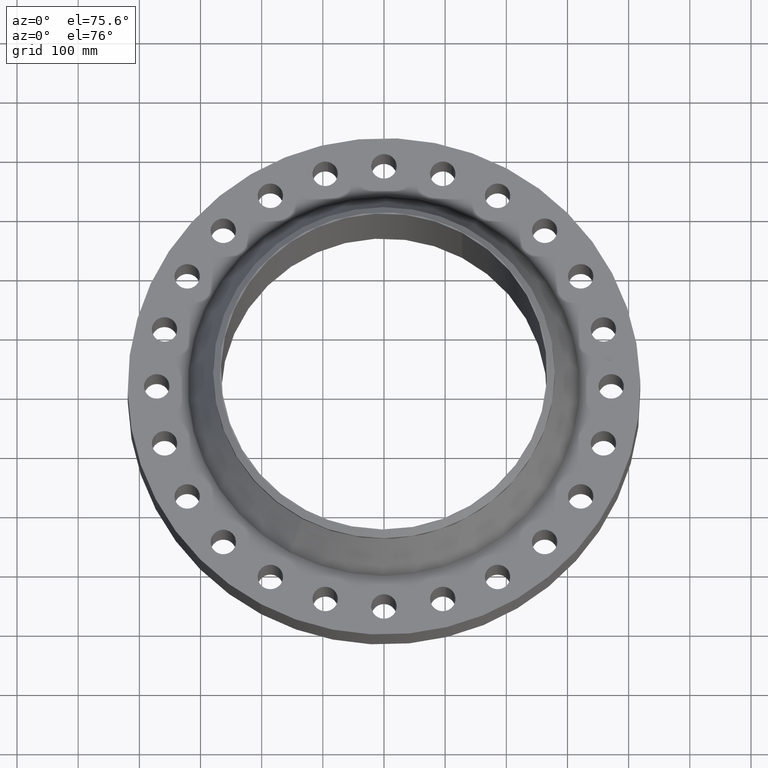
[diagram: clean part render]
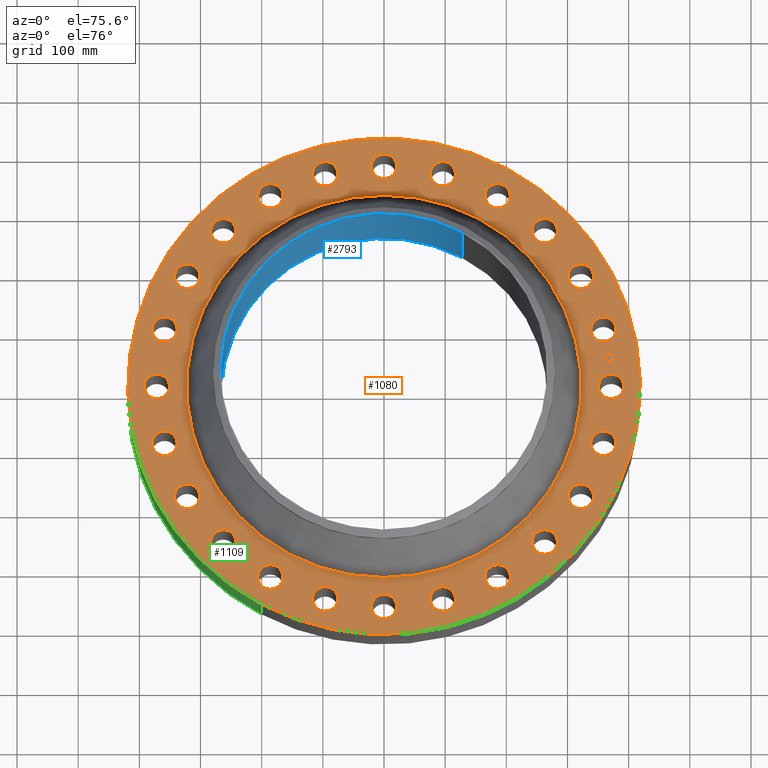
[diagram: same view with three faces highlighted in distinct colors, each labeled with its STEP entity id]
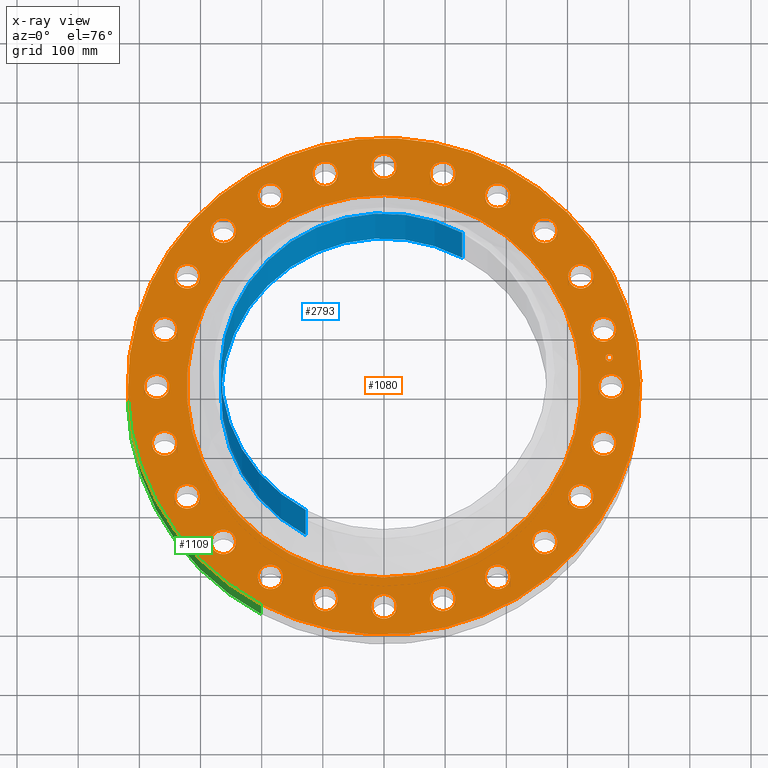
[diagram: x-ray of the same camera — body ghosted, the three highlighted faces saturated]
A machine part, auxiliary view with three faces highlighted in distinct colors.
The next image is the same camera in x-ray (body ghosted, the three faces saturated) — at least one of them is partly hidden behind the body in this view.
Their STEP definitions:

[orange] entity #1080 — the highlighted planar face has unit normal (0, 0, -1).
#119=AXIS2_PLACEMENT_3D('Circle Axis2P3D',#117,#118,$) ;
#606=AXIS2_PLACEMENT_3D('Plane Axis2P3D',#603,#604,#605) ;
#610=AXIS2_PLACEMENT_3D('Circle Axis2P3D',#608,#609,$) ;
#619=AXIS2_PLACEMENT_3D('Circle Axis2P3D',#617,#618,$) ;
#632=AXIS2_PLACEMENT_3D('Circle Axis2P3D',#630,#631,$) ;
#641=AXIS2_PLACEMENT_3D('Circle Axis2P3D',#639,#640,$) ;
#650=AXIS2_PLACEMENT_3D('Circle Axis2P3D',#648,#649,$) ;
#659=AXIS2_PLACEMENT_3D('Circle Axis2P3D',#657,#658,$) ;
#668=AXIS2_PLACEMENT_3D('Circle Axis2P3D',#666,#667,$) ;
#677=AXIS2_PLACEMENT_3D('Circle Axis2P3D',#675,#676,$) ;
#686=AXIS2_PLACEMENT_3D('Circle Axis2P3D',#684,#685,$) ;
#695=AXIS2_PLACEMENT_3D('Circle Axis2P3D',#693,#694,$) ;
#704=AXIS2_PLACEMENT_3D('Circle Axis2P3D',#702,#703,$) ;
#713=AXIS2_PLACEMENT_3D('Circle Axis2P3D',#711,#712,$) ;
#722=AXIS2_PLACEMENT_3D('Circle Axis2P3D',#720,#721,$) ;
#731=AXIS2_PLACEMENT_3D('Circle Axis2P3D',#729,#730,$) ;
#740=AXIS2_PLACEMENT_3D('Circle Axis2P3D',#738,#739,$) ;
#749=AXIS2_PLACEMENT_3D('Circle Axis2P3D',#747,#748,$) ;
#758=AXIS2_PLACEMENT_3D('Circle Axis2P3D',#756,#757,$) ;
#767=AXIS2_PLACEMENT_3D('Circle Axis2P3D',#765,#766,$) ;
#776=AXIS2_PLACEMENT_3D('Circle Axis2P3D',#774,#775,$) ;
#785=AXIS2_PLACEMENT_3D('Circle Axis2P3D',#783,#784,$) ;
#794=AXIS2_PLACEMENT_3D('Circle Axis2P3D',#792,#793,$) ;
#803=AXIS2_PLACEMENT_3D('Circle Axis2P3D',#801,#802,$) ;
#812=AXIS2_PLACEMENT_3D('Circle Axis2P3D',#810,#811,$) ;
#821=AXIS2_PLACEMENT_3D('Circle Axis2P3D',#819,#820,$) ;
#830=AXIS2_PLACEMENT_3D('Circle Axis2P3D',#828,#829,$) ;
#839=AXIS2_PLACEMENT_3D('Circle Axis2P3D',#837,#838,$) ;
#848=AXIS2_PLACEMENT_3D('Circle Axis2P3D',#846,#847,$) ;
#857=AXIS2_PLACEMENT_3D('Circle Axis2P3D',#855,#856,$) ;
#866=AXIS2_PLACEMENT_3D('Circle Axis2P3D',#864,#865,$) ;
#875=AXIS2_PLACEMENT_3D('Circle Axis2P3D',#873,#874,$) ;
#884=AXIS2_PLACEMENT_3D('Circle Axis2P3D',#882,#883,$) ;
#893=AXIS2_PLACEMENT_3D('Circle Axis2P3D',#891,#892,$) ;
#902=AXIS2_PLACEMENT_3D('Circle Axis2P3D',#900,#901,$) ;
#911=AXIS2_PLACEMENT_3D('Circle Axis2P3D',#909,#910,$) ;
#920=AXIS2_PLACEMENT_3D('Circle Axis2P3D',#918,#919,$) ;
#929=AXIS2_PLACEMENT_3D('Circle Axis2P3D',#927,#928,$) ;
#938=AXIS2_PLACEMENT_3D('Circle Axis2P3D',#936,#937,$) ;
#947=AXIS2_PLACEMENT_3D('Circle Axis2P3D',#945,#946,$) ;
#956=AXIS2_PLACEMENT_3D('Circle Axis2P3D',#954,#955,$) ;
#965=AXIS2_PLACEMENT_3D('Circle Axis2P3D',#963,#964,$) ;
#974=AXIS2_PLACEMENT_3D('Circle Axis2P3D',#972,#973,$) ;
#983=AXIS2_PLACEMENT_3D('Circle Axis2P3D',#981,#982,$) ;
#992=AXIS2_PLACEMENT_3D('Circle Axis2P3D',#990,#991,$) ;
#1001=AXIS2_PLACEMENT_3D('Circle Axis2P3D',#999,#1000,$) ;
#1010=AXIS2_PLACEMENT_3D('Circle Axis2P3D',#1008,#1009,$) ;
#1019=AXIS2_PLACEMENT_3D('Circle Axis2P3D',#1017,#1018,$) ;
#1028=AXIS2_PLACEMENT_3D('Circle Axis2P3D',#1026,#1027,$) ;
#1037=AXIS2_PLACEMENT_3D('Circle Axis2P3D',#1035,#1036,$) ;
#1046=AXIS2_PLACEMENT_3D('Circle Axis2P3D',#1044,#1045,$) ;
#1055=AXIS2_PLACEMENT_3D('Circle Axis2P3D',#1053,#1054,$) ;
#1064=AXIS2_PLACEMENT_3D('Circle Axis2P3D',#1062,#1063,$) ;
#1073=AXIS2_PLACEMENT_3D('Circle Axis2P3D',#1071,#1072,$) ;
#46=CARTESIAN_POINT('Vertex',(13.9097702122,0.390731813964,2.57)) ;
#72=CARTESIAN_POINT('Vertex',(15.340229788,-0.390731814005,2.57000000001)) ;
#76=CARTESIAN_POINT('Control Point',(13.9097702122,0.390731813964,2.57000000001)) ;
#77=CARTESIAN_POINT('Control Point',(13.971146222,0.503079846336,2.57000000001)) ;
#78=CARTESIAN_POINT('Control Point',(14.0545817164,0.603376727361,2.57000000001)) ;
#79=CARTESIAN_POINT('Control Point',(14.1569393459,0.68582776087,2.57000000001)) ;
#80=CARTESIAN_POINT('Control Point',(14.3884683219,0.806152810408,2.57000000001)) ;
#81=CARTESIAN_POINT('Control Point',(14.6483051391,0.829998412076,2.57000000001)) ;
#82=CARTESIAN_POINT('Control Point',(14.778984598,0.815922322999,2.57000000001)) ;
#83=CARTESIAN_POINT('Control Point',(15.0277829654,0.737289272515,2.57)) ;
#84=CARTESIAN_POINT('Control Point',(15.2283767275,0.570418283744,2.57)) ;
#85=CARTESIAN_POINT('Control Point',(15.310827761,0.468060654158,2.57)) ;
#86=CARTESIAN_POINT('Control Point',(15.4311528105,0.236531678174,2.57)) ;
#87=CARTESIAN_POINT('Control Point',(15.4549984122,-0.0233051389788,2.57)) ;
#88=CARTESIAN_POINT('Control Point',(15.4409223231,-0.153984597875,2.57)) ;
#89=CARTESIAN_POINT('Control Point',(15.4016057979,-0.278383781593,2.57)) ;
#90=CARTESIAN_POINT('Control Point',(15.340229788,-0.390731813964,2.57)) ;
#117=CARTESIAN_POINT('Axis2P3D Location',(14.6250000001,0.,2.57)) ;
#603=CARTESIAN_POINT('Axis2P3D Location',(0.,16.5000000001,2.57000000001)) ;
#608=CARTESIAN_POINT('Axis2P3D Location',(1.28166244022E-011,-2.32968500134E-012,2.57000000001)) ;
#612=CARTESIAN_POINT('Vertex',(7.91052138702,14.4801122713,2.57)) ;
#614=CARTESIAN_POINT('Vertex',(-7.91052138702,-14.4801122713,2.57)) ;
#617=CARTESIAN_POINT('Axis2P3D Location',(-1.28166244022E-011,1.16663284457E-011,2.57000000001)) ;
#630=CARTESIAN_POINT('Axis2P3D Location',(4.36620118888E-011,-1.91880107603E-011,2.57000000001)) ;
#634=CARTESIAN_POINT('Vertex',(-6.08854825623,-11.1450128261,2.57000000001)) ;
#636=CARTESIAN_POINT('Vertex',(6.08854825624,11.1450128261,2.57000000001)) ;
#639=CARTESIAN_POINT('Axis2P3D Location',(-1.28076726827E-011,1.16685663756E-011,2.57000000001)) ;
#648=CARTESIAN_POINT('Axis2P3D Location',(14.1266652095,-3.78522853462,2.57000000001)) ;
#652=CARTESIAN_POINT('Vertex',(14.7163952985,-4.3477615756,2.57)) ;
#654=CARTESIAN_POINT('Vertex',(13.5369351206,-3.22269549363,2.57)) ;
#657=CARTESIAN_POINT('Axis2P3D Location',(14.1266652095,-3.78522853462,2.57000000001)) ;
#666=CARTESIAN_POINT('Axis2P3D Location',(12.6656215304,-7.31250000002,2.57000000001)) ;
#670=CARTESIAN_POINT('Vertex',(13.0896627893,-8.00849857096,2.57)) ;
#672=CARTESIAN_POINT('Vertex',(12.2415802715,-6.6165014291,2.57)) ;
#675=CARTESIAN_POINT('Axis2P3D Location',(12.6656215304,-7.31250000002,2.57000000001)) ;
#684=CARTESIAN_POINT('Axis2P3D Location',(10.3414366749,-10.3414366749,2.57000000001)) ;
#688=CARTESIAN_POINT('Vertex',(10.5708913928,-11.1234696233,2.57000000001)) ;
#690=CARTESIAN_POINT('Vertex',(10.111981957,-9.55940372646,2.57)) ;
#693=CARTESIAN_POINT('Axis2P3D Location',(10.3414366749,-10.3414366749,2.57000000001)) ;
#702=CARTESIAN_POINT('Axis2P3D Location',(7.31250000003,-12.6656215304,2.57000000001)) ;
#706=CARTESIAN_POINT('Vertex',(7.33173121704,-13.4803946033,2.57)) ;
#708=CARTESIAN_POINT('Vertex',(7.29326878302,-11.8508484575,2.57)) ;
#711=CARTESIAN_POINT('Axis2P3D Location',(7.31250000003,-12.6656215304,2.57000000001)) ;
#720=CARTESIAN_POINT('Axis2P3D Location',(3.78522853462,-14.1266652095,2.57000000001)) ;
#724=CARTESIAN_POINT('Vertex',(3.59292567512,-14.9186529684,2.57)) ;
#726=CARTESIAN_POINT('Vertex',(3.97753139416,-13.3346774506,2.57)) ;
#729=CARTESIAN_POINT('Axis2P3D Location',(3.78522853469,-14.1266652095,2.57000000001)) ;
#738=CARTESIAN_POINT('Axis2P3D Location',(6.99353086378E-017,-14.6250000001,2.57000000001)) ;
#742=CARTESIAN_POINT('Vertex',(-0.390731813973,-15.340229788,2.57000000001)) ;
#744=CARTESIAN_POINT('Vertex',(0.390731813964,-13.9097702122,2.57)) ;
#747=CARTESIAN_POINT('Axis2P3D Location',(-6.99353086378E-017,-14.6250000001,2.57000000001)) ;
#756=CARTESIAN_POINT('Axis2P3D Location',(-3.78522853463,-14.1266652095,2.57000000001)) ;
#760=CARTESIAN_POINT('Vertex',(-4.3477615756,-14.7163952985,2.57)) ;
#762=CARTESIAN_POINT('Vertex',(-3.22269549363,-13.5369351206,2.57)) ;
#765=CARTESIAN_POINT('Axis2P3D Location',(-3.78522853466,-14.1266652095,2.57000000001)) ;
#774=CARTESIAN_POINT('Axis2P3D Location',(-7.31250000003,-12.6656215304,2.57000000001)) ;
#778=CARTESIAN_POINT('Vertex',(-8.00849857096,-13.0896627893,2.57)) ;
#780=CARTESIAN_POINT('Vertex',(-6.6165014291,-12.2415802715,2.57)) ;
#783=CARTESIAN_POINT('Axis2P3D Location',(-7.3125,-12.6656215304,2.57000000001)) ;
#792=CARTESIAN_POINT('Axis2P3D Location',(-10.3414366749,-10.3414366749,2.57000000001)) ;
#796=CARTESIAN_POINT('Vertex',(-11.1234696234,-10.5708913928,2.57000000001)) ;
#798=CARTESIAN_POINT('Vertex',(-9.55940372646,-10.111981957,2.57)) ;
#801=CARTESIAN_POINT('Axis2P3D Location',(-10.3414366749,-10.3414366749,2.57000000001)) ;
#810=CARTESIAN_POINT('Axis2P3D Location',(-12.6656215304,-7.31250000006,2.57000000001)) ;
#814=CARTESIAN_POINT('Vertex',(-13.4803946033,-7.33173121704,2.57)) ;
#816=CARTESIAN_POINT('Vertex',(-11.8508484575,-7.29326878302,2.57)) ;
#819=CARTESIAN_POINT('Axis2P3D Location',(-12.6656215304,-7.31249999999,2.57000000001)) ;
#828=CARTESIAN_POINT('Axis2P3D Location',(-14.1266652095,-3.78522853463,2.57000000001)) ;
#832=CARTESIAN_POINT('Vertex',(-14.9186529684,-3.59292567512,2.57)) ;
#834=CARTESIAN_POINT('Vertex',(-13.3346774506,-3.97753139416,2.57)) ;
#837=CARTESIAN_POINT('Axis2P3D Location',(-14.1266652095,-3.78522853461,2.57000000001)) ;
#846=CARTESIAN_POINT('Axis2P3D Location',(-14.6250000001,-4.59961727498E-011,2.57000000001)) ;
#850=CARTESIAN_POINT('Vertex',(-15.340229788,0.390731814014,2.57000000001)) ;
#852=CARTESIAN_POINT('Vertex',(-13.9097702122,-0.390731813964,2.57)) ;
#855=CARTESIAN_POINT('Axis2P3D Location',(-14.6250000001,-1.51418335438E-011,2.57000000001)) ;
#864=CARTESIAN_POINT('Axis2P3D Location',(-14.1266652095,3.78522853463,2.57000000001)) ;
#868=CARTESIAN_POINT('Vertex',(-14.7163952985,4.3477615756,2.57)) ;
#870=CARTESIAN_POINT('Vertex',(-13.5369351206,3.22269549363,2.57)) ;
#873=CARTESIAN_POINT('Axis2P3D Location',(-14.1266652095,3.78522853463,2.57000000001)) ;
#882=CARTESIAN_POINT('Axis2P3D Location',(-12.6656215304,7.31250000003,2.57000000001)) ;
#886=CARTESIAN_POINT('Vertex',(-13.0896627893,8.00849857096,2.57)) ;
#888=CARTESIAN_POINT('Vertex',(-12.2415802715,6.6165014291,2.57)) ;
#891=CARTESIAN_POINT('Axis2P3D Location',(-12.6656215304,7.31250000003,2.57000000001)) ;
#900=CARTESIAN_POINT('Axis2P3D Location',(-10.3414366749,10.3414366749,2.57000000001)) ;
#904=CARTESIAN_POINT('Vertex',(-10.5708913928,11.1234696233,2.57000000001)) ;
#906=CARTESIAN_POINT('Vertex',(-10.111981957,9.55940372646,2.57)) ;
#909=CARTESIAN_POINT('Axis2P3D Location',(-10.3414366749,10.3414366749,2.57000000001)) ;
#918=CARTESIAN_POINT('Axis2P3D Location',(-7.31250000003,12.6656215304,2.57000000001)) ;
#922=CARTESIAN_POINT('Vertex',(-7.33173121704,13.4803946033,2.57)) ;
#924=CARTESIAN_POINT('Vertex',(-7.29326878302,11.8508484575,2.57)) ;
#927=CARTESIAN_POINT('Axis2P3D Location',(-7.31250000003,12.6656215304,2.57000000001)) ;
#936=CARTESIAN_POINT('Axis2P3D Location',(-3.78522853462,14.1266652095,2.57000000001)) ;
#940=CARTESIAN_POINT('Vertex',(-3.59292567512,14.9186529684,2.57)) ;
#942=CARTESIAN_POINT('Vertex',(-3.97753139416,13.3346774506,2.57)) ;
#945=CARTESIAN_POINT('Axis2P3D Location',(-3.78522853469,14.1266652095,2.57000000001)) ;
#954=CARTESIAN_POINT('Axis2P3D Location',(-6.99353086378E-017,14.6250000001,2.57000000001)) ;
#958=CARTESIAN_POINT('Vertex',(0.390731813973,15.340229788,2.57000000001)) ;
#960=CARTESIAN_POINT('Vertex',(-0.390731813964,13.9097702122,2.57)) ;
#963=CARTESIAN_POINT('Axis2P3D Location',(6.99353086378E-017,14.6250000001,2.57000000001)) ;
#972=CARTESIAN_POINT('Axis2P3D Location',(3.78522853466,14.1266652094,2.57000000001)) ;
#976=CARTESIAN_POINT('Vertex',(4.3477615756,14.7163952985,2.57)) ;
#978=CARTESIAN_POINT('Vertex',(3.22269549363,13.5369351206,2.57)) ;
#981=CARTESIAN_POINT('Axis2P3D Location',(3.78522853462,14.1266652095,2.57000000001)) ;
#990=CARTESIAN_POINT('Axis2P3D Location',(7.31250000003,12.6656215304,2.57000000001)) ;
#994=CARTESIAN_POINT('Vertex',(8.00849857096,13.0896627893,2.57)) ;
#996=CARTESIAN_POINT('Vertex',(6.6165014291,12.2415802715,2.57)) ;
#999=CARTESIAN_POINT('Axis2P3D Location',(7.31250000003,12.6656215304,2.57000000001)) ;
#1008=CARTESIAN_POINT('Axis2P3D Location',(10.3414366749,10.3414366749,2.57000000001)) ;
#1012=CARTESIAN_POINT('Vertex',(11.1234696234,10.5708913928,2.57000000001)) ;
#1014=CARTESIAN_POINT('Vertex',(9.55940372646,10.111981957,2.57)) ;
#1017=CARTESIAN_POINT('Axis2P3D Location',(10.3414366749,10.3414366749,2.57000000001)) ;
#1026=CARTESIAN_POINT('Axis2P3D Location',(12.6656215304,7.31250000007,2.57000000001)) ;
#1030=CARTESIAN_POINT('Vertex',(13.4803946033,7.33173121704,2.57)) ;
#1032=CARTESIAN_POINT('Vertex',(11.8508484575,7.29326878302,2.57)) ;
#1035=CARTESIAN_POINT('Axis2P3D Location',(12.6656215304,7.3125,2.57000000001)) ;
#1044=CARTESIAN_POINT('Axis2P3D Location',(14.1266652095,3.78522853464,2.57000000001)) ;
#1048=CARTESIAN_POINT('Vertex',(14.9186529684,3.59292567512,2.57)) ;
#1050=CARTESIAN_POINT('Vertex',(13.3346774506,3.97753139416,2.57)) ;
#1053=CARTESIAN_POINT('Axis2P3D Location',(14.1266652095,3.78522853462,2.57000000001)) ;
#1062=CARTESIAN_POINT('Axis2P3D Location',(14.4998810976,1.90894556124,2.57000000001)) ;
#1066=CARTESIAN_POINT('Vertex',(14.4675758651,2.15432816446,2.57000000001)) ;
#1068=CARTESIAN_POINT('Vertex',(14.5321863302,1.66356295806,2.57000000001)) ;
#1071=CARTESIAN_POINT('Axis2P3D Location',(14.4998810976,1.90894556125,2.57000000001)) ;
#118=DIRECTION('Axis2P3D Direction',(0.,-0.,-0.0393700787402)) ;
#604=DIRECTION('Axis2P3D Direction',(0.,0.,-0.0393700787402)) ;
#605=DIRECTION('Axis2P3D XDirection',(0.0393700787402,0.,0.)) ;
#609=DIRECTION('Axis2P3D Direction',(0.,0.,-0.0393700787402)) ;
#618=DIRECTION('Axis2P3D Direction',(0.,0.,-0.0393700787402)) ;
#631=DIRECTION('Axis2P3D Direction',(0.,0.,-0.0393700787402)) ;
#640=DIRECTION('Axis2P3D Direction',(0.,0.,-0.0393700787402)) ;
#649=DIRECTION('Axis2P3D Direction',(0.,0.,-0.0393700787402)) ;
#658=DIRECTION('Axis2P3D Direction',(0.,0.,-0.0393700787402)) ;
#667=DIRECTION('Axis2P3D Direction',(0.,0.,-0.0393700787402)) ;
#676=DIRECTION('Axis2P3D Direction',(0.,0.,-0.0393700787402)) ;
#685=DIRECTION('Axis2P3D Direction',(0.,0.,-0.0393700787402)) ;
#694=DIRECTION('Axis2P3D Direction',(0.,0.,-0.0393700787402)) ;
#703=DIRECTION('Axis2P3D Direction',(0.,0.,-0.0393700787402)) ;
#712=DIRECTION('Axis2P3D Direction',(0.,0.,-0.0393700787402)) ;
#721=DIRECTION('Axis2P3D Direction',(0.,0.,-0.0393700787402)) ;
#730=DIRECTION('Axis2P3D Direction',(0.,0.,-0.0393700787402)) ;
#739=DIRECTION('Axis2P3D Direction',(0.,0.,-0.0393700787402)) ;
#748=DIRECTION('Axis2P3D Direction',(0.,0.,-0.0393700787402)) ;
#757=DIRECTION('Axis2P3D Direction',(0.,0.,-0.0393700787402)) ;
#766=DIRECTION('Axis2P3D Direction',(0.,0.,-0.0393700787402)) ;
#775=DIRECTION('Axis2P3D Direction',(0.,0.,-0.0393700787402)) ;
#784=DIRECTION('Axis2P3D Direction',(0.,0.,-0.0393700787402)) ;
#793=DIRECTION('Axis2P3D Direction',(0.,0.,-0.0393700787402)) ;
#802=DIRECTION('Axis2P3D Direction',(0.,0.,-0.0393700787402)) ;
#811=DIRECTION('Axis2P3D Direction',(0.,0.,-0.0393700787402)) ;
#820=DIRECTION('Axis2P3D Direction',(0.,0.,-0.0393700787402)) ;
#829=DIRECTION('Axis2P3D Direction',(0.,0.,-0.0393700787402)) ;
#838=DIRECTION('Axis2P3D Direction',(0.,0.,-0.0393700787402)) ;
#847=DIRECTION('Axis2P3D Direction',(0.,0.,-0.0393700787402)) ;
#856=DIRECTION('Axis2P3D Direction',(0.,0.,-0.0393700787402)) ;
#865=DIRECTION('Axis2P3D Direction',(0.,0.,-0.0393700787402)) ;
#874=DIRECTION('Axis2P3D Direction',(0.,0.,-0.0393700787402)) ;
#883=DIRECTION('Axis2P3D Direction',(0.,0.,-0.0393700787402)) ;
#892=DIRECTION('Axis2P3D Direction',(0.,0.,-0.0393700787402)) ;
#901=DIRECTION('Axis2P3D Direction',(0.,0.,-0.0393700787402)) ;
#910=DIRECTION('Axis2P3D Direction',(0.,0.,-0.0393700787402)) ;
#919=DIRECTION('Axis2P3D Direction',(0.,0.,-0.0393700787402)) ;
#928=DIRECTION('Axis2P3D Direction',(0.,0.,-0.0393700787402)) ;
#937=DIRECTION('Axis2P3D Direction',(0.,0.,-0.0393700787402)) ;
#946=DIRECTION('Axis2P3D Direction',(0.,0.,-0.0393700787402)) ;
#955=DIRECTION('Axis2P3D Direction',(0.,0.,-0.0393700787402)) ;
#964=DIRECTION('Axis2P3D Direction',(0.,0.,-0.0393700787402)) ;
#973=DIRECTION('Axis2P3D Direction',(0.,0.,-0.0393700787402)) ;
#982=DIRECTION('Axis2P3D Direction',(0.,0.,-0.0393700787402)) ;
#991=DIRECTION('Axis2P3D Direction',(0.,0.,-0.0393700787402)) ;
#1000=DIRECTION('Axis2P3D Direction',(0.,0.,-0.0393700787402)) ;
#1009=DIRECTION('Axis2P3D Direction',(0.,0.,-0.0393700787402)) ;
#1018=DIRECTION('Axis2P3D Direction',(0.,0.,-0.0393700787402)) ;
#1027=DIRECTION('Axis2P3D Direction',(0.,0.,-0.0393700787402)) ;
#1036=DIRECTION('Axis2P3D Direction',(0.,0.,-0.0393700787402)) ;
#1045=DIRECTION('Axis2P3D Direction',(0.,0.,-0.0393700787402)) ;
#1054=DIRECTION('Axis2P3D Direction',(0.,0.,-0.0393700787402)) ;
#1063=DIRECTION('Axis2P3D Direction',(0.,0.,-0.0393700787402)) ;
#1072=DIRECTION('Axis2P3D Direction',(0.,0.,-0.0393700787402)) ;
#623=ORIENTED_EDGE('',*,*,#616,.F.) ;
#624=ORIENTED_EDGE('',*,*,#621,.F.) ;
#627=ORIENTED_EDGE('',*,*,#91,.T.) ;
#628=ORIENTED_EDGE('',*,*,#121,.T.) ;
#645=ORIENTED_EDGE('',*,*,#638,.T.) ;
#646=ORIENTED_EDGE('',*,*,#643,.T.) ;
#663=ORIENTED_EDGE('',*,*,#656,.T.) ;
#664=ORIENTED_EDGE('',*,*,#661,.T.) ;
#681=ORIENTED_EDGE('',*,*,#674,.T.) ;
#682=ORIENTED_EDGE('',*,*,#679,.T.) ;
#699=ORIENTED_EDGE('',*,*,#692,.T.) ;
#700=ORIENTED_EDGE('',*,*,#697,.T.) ;
#717=ORIENTED_EDGE('',*,*,#710,.T.) ;
#718=ORIENTED_EDGE('',*,*,#715,.T.) ;
#735=ORIENTED_EDGE('',*,*,#728,.T.) ;
#736=ORIENTED_EDGE('',*,*,#733,.T.) ;
#753=ORIENTED_EDGE('',*,*,#746,.T.) ;
#754=ORIENTED_EDGE('',*,*,#751,.T.) ;
#771=ORIENTED_EDGE('',*,*,#764,.T.) ;
#772=ORIENTED_EDGE('',*,*,#769,.T.) ;
#789=ORIENTED_EDGE('',*,*,#782,.T.) ;
#790=ORIENTED_EDGE('',*,*,#787,.T.) ;
#807=ORIENTED_EDGE('',*,*,#800,.T.) ;
#808=ORIENTED_EDGE('',*,*,#805,.T.) ;
#825=ORIENTED_EDGE('',*,*,#818,.T.) ;
#826=ORIENTED_EDGE('',*,*,#823,.T.) ;
#843=ORIENTED_EDGE('',*,*,#836,.T.) ;
#844=ORIENTED_EDGE('',*,*,#841,.T.) ;
#861=ORIENTED_EDGE('',*,*,#854,.T.) ;
#862=ORIENTED_EDGE('',*,*,#859,.T.) ;
#879=ORIENTED_EDGE('',*,*,#872,.T.) ;
#880=ORIENTED_EDGE('',*,*,#877,.T.) ;
#897=ORIENTED_EDGE('',*,*,#890,.T.) ;
#898=ORIENTED_EDGE('',*,*,#895,.T.) ;
#915=ORIENTED_EDGE('',*,*,#908,.T.) ;
#916=ORIENTED_EDGE('',*,*,#913,.T.) ;
#933=ORIENTED_EDGE('',*,*,#926,.T.) ;
#934=ORIENTED_EDGE('',*,*,#931,.T.) ;
#951=ORIENTED_EDGE('',*,*,#944,.T.) ;
#952=ORIENTED_EDGE('',*,*,#949,.T.) ;
#969=ORIENTED_EDGE('',*,*,#962,.T.) ;
#970=ORIENTED_EDGE('',*,*,#967,.T.) ;
#987=ORIENTED_EDGE('',*,*,#980,.T.) ;
#988=ORIENTED_EDGE('',*,*,#985,.T.) ;
#1005=ORIENTED_EDGE('',*,*,#998,.T.) ;
#1006=ORIENTED_EDGE('',*,*,#1003,.T.) ;
#1023=ORIENTED_EDGE('',*,*,#1016,.T.) ;
#1024=ORIENTED_EDGE('',*,*,#1021,.T.) ;
#1041=ORIENTED_EDGE('',*,*,#1034,.T.) ;
#1042=ORIENTED_EDGE('',*,*,#1039,.T.) ;
#1059=ORIENTED_EDGE('',*,*,#1052,.T.) ;
#1060=ORIENTED_EDGE('',*,*,#1057,.T.) ;
#1077=ORIENTED_EDGE('',*,*,#1070,.T.) ;
#1078=ORIENTED_EDGE('',*,*,#1075,.T.) ;
#629=FACE_BOUND('',#626,.T.) ;
#647=FACE_BOUND('',#644,.T.) ;
#665=FACE_BOUND('',#662,.T.) ;
#683=FACE_BOUND('',#680,.T.) ;
#701=FACE_BOUND('',#698,.T.) ;
#719=FACE_BOUND('',#716,.T.) ;
#737=FACE_BOUND('',#734,.T.) ;
#755=FACE_BOUND('',#752,.T.) ;
#773=FACE_BOUND('',#770,.T.) ;
#791=FACE_BOUND('',#788,.T.) ;
#809=FACE_BOUND('',#806,.T.) ;
#827=FACE_BOUND('',#824,.T.) ;
#845=FACE_BOUND('',#842,.T.) ;
#863=FACE_BOUND('',#860,.T.) ;
#881=FACE_BOUND('',#878,.T.) ;
#899=FACE_BOUND('',#896,.T.) ;
#917=FACE_BOUND('',#914,.T.) ;
#935=FACE_BOUND('',#932,.T.) ;
#953=FACE_BOUND('',#950,.T.) ;
#971=FACE_BOUND('',#968,.T.) ;
#989=FACE_BOUND('',#986,.T.) ;
#1007=FACE_BOUND('',#1004,.T.) ;
#1025=FACE_BOUND('',#1022,.T.) ;
#1043=FACE_BOUND('',#1040,.T.) ;
#1061=FACE_BOUND('',#1058,.T.) ;
#1079=FACE_BOUND('',#1076,.T.) ;
#1080=ADVANCED_FACE('PartBody',(#625,#629,#647,#665,#683,#701,#719,#737,#755,#773,#791,#809,#827,#845,#863,#881,#899,#917,#935,#953,#971,#989,#1007,#1025,#1043,#1061,#1079),#607,.F.) ;
#75=B_SPLINE_CURVE_WITH_KNOTS('',5,(#76,#77,#78,#79,#80,#81,#82,#83,#84,#85,#86,#87,#88,#89,#90),.UNSPECIFIED.,.F.,.U.,(6,3,3,3,6),(-32.5170547611,-16.2585273806,0.,16.2585273806,32.5170547611),.UNSPECIFIED.) ;
#120=CIRCLE('generated circle',#119,0.815000000003) ;
#611=CIRCLE('generated circle',#610,16.5000000001) ;
#620=CIRCLE('generated circle',#619,16.5000000001) ;
#633=CIRCLE('generated circle',#632,12.6996744353) ;
#642=CIRCLE('generated circle',#641,12.6996744353) ;
#651=CIRCLE('generated circle',#650,0.815000000019) ;
#660=CIRCLE('generated circle',#659,0.815000000019) ;
#669=CIRCLE('generated circle',#668,0.815000000004) ;
#678=CIRCLE('generated circle',#677,0.815000000004) ;
#687=CIRCLE('generated circle',#686,0.815000000009) ;
#696=CIRCLE('generated circle',#695,0.815000000009) ;
#705=CIRCLE('generated circle',#704,0.815000000011) ;
#714=CIRCLE('generated circle',#713,0.815000000011) ;
#723=CIRCLE('generated circle',#722,0.814999999983) ;
#732=CIRCLE('generated circle',#731,0.814999999983) ;
#741=CIRCLE('generated circle',#740,0.815000000008) ;
#750=CIRCLE('generated circle',#749,0.815000000008) ;
#759=CIRCLE('generated circle',#758,0.815000000019) ;
#768=CIRCLE('generated circle',#767,0.815000000019) ;
#777=CIRCLE('generated circle',#776,0.814999999992) ;
#786=CIRCLE('generated circle',#785,0.814999999992) ;
#795=CIRCLE('generated circle',#794,0.815000000009) ;
#804=CIRCLE('generated circle',#803,0.815000000009) ;
#813=CIRCLE('generated circle',#812,0.81500000001) ;
#822=CIRCLE('generated circle',#821,0.81500000001) ;
#831=CIRCLE('generated circle',#830,0.815000000018) ;
#840=CIRCLE('generated circle',#839,0.815000000018) ;
#849=CIRCLE('generated circle',#848,0.815000000008) ;
#858=CIRCLE('generated circle',#857,0.815000000008) ;
#867=CIRCLE('generated circle',#866,0.815000000019) ;
#876=CIRCLE('generated circle',#875,0.815000000019) ;
#885=CIRCLE('generated circle',#884,0.815000000004) ;
#894=CIRCLE('generated circle',#893,0.815000000004) ;
#903=CIRCLE('generated circle',#902,0.815000000009) ;
#912=CIRCLE('generated circle',#911,0.815000000009) ;
#921=CIRCLE('generated circle',#920,0.815000000011) ;
#930=CIRCLE('generated circle',#929,0.815000000011) ;
#939=CIRCLE('generated circle',#938,0.814999999983) ;
#948=CIRCLE('generated circle',#947,0.814999999983) ;
#957=CIRCLE('generated circle',#956,0.815000000008) ;
#966=CIRCLE('generated circle',#965,0.815000000008) ;
#975=CIRCLE('generated circle',#974,0.814999999993) ;
#984=CIRCLE('generated circle',#983,0.814999999993) ;
#993=CIRCLE('generated circle',#992,0.814999999992) ;
#1002=CIRCLE('generated circle',#1001,0.814999999992) ;
#1011=CIRCLE('generated circle',#1010,0.815000000009) ;
#1020=CIRCLE('generated circle',#1019,0.815000000009) ;
#1029=CIRCLE('generated circle',#1028,0.81500000001) ;
#1038=CIRCLE('generated circle',#1037,0.81500000001) ;
#1047=CIRCLE('generated circle',#1046,0.815000000018) ;
#1056=CIRCLE('generated circle',#1055,0.815000000018) ;
#1065=CIRCLE('generated circle',#1064,0.247500000007) ;
#1074=CIRCLE('generated circle',#1073,0.247500000007) ;
#91=EDGE_CURVE('',#47,#73,#75,.T.) ;
#121=EDGE_CURVE('',#73,#47,#120,.T.) ;
#616=EDGE_CURVE('',#613,#615,#611,.T.) ;
#621=EDGE_CURVE('',#615,#613,#620,.T.) ;
#638=EDGE_CURVE('',#635,#637,#633,.T.) ;
#643=EDGE_CURVE('',#637,#635,#642,.T.) ;
#656=EDGE_CURVE('',#653,#655,#651,.T.) ;
#661=EDGE_CURVE('',#655,#653,#660,.T.) ;
#674=EDGE_CURVE('',#671,#673,#669,.T.) ;
#679=EDGE_CURVE('',#673,#671,#678,.T.) ;
#692=EDGE_CURVE('',#689,#691,#687,.T.) ;
#697=EDGE_CURVE('',#691,#689,#696,.T.) ;
#710=EDGE_CURVE('',#707,#709,#705,.T.) ;
#715=EDGE_CURVE('',#709,#707,#714,.T.) ;
#728=EDGE_CURVE('',#725,#727,#723,.T.) ;
#733=EDGE_CURVE('',#727,#725,#732,.T.) ;
#746=EDGE_CURVE('',#743,#745,#741,.T.) ;
#751=EDGE_CURVE('',#745,#743,#750,.T.) ;
#764=EDGE_CURVE('',#761,#763,#759,.T.) ;
#769=EDGE_CURVE('',#763,#761,#768,.T.) ;
#782=EDGE_CURVE('',#779,#781,#777,.T.) ;
#787=EDGE_CURVE('',#781,#779,#786,.T.) ;
#800=EDGE_CURVE('',#797,#799,#795,.T.) ;
#805=EDGE_CURVE('',#799,#797,#804,.T.) ;
#818=EDGE_CURVE('',#815,#817,#813,.T.) ;
#823=EDGE_CURVE('',#817,#815,#822,.T.) ;
#836=EDGE_CURVE('',#833,#835,#831,.T.) ;
#841=EDGE_CURVE('',#835,#833,#840,.T.) ;
#854=EDGE_CURVE('',#851,#853,#849,.T.) ;
#859=EDGE_CURVE('',#853,#851,#858,.T.) ;
#872=EDGE_CURVE('',#869,#871,#867,.T.) ;
#877=EDGE_CURVE('',#871,#869,#876,.T.) ;
#890=EDGE_CURVE('',#887,#889,#885,.T.) ;
#895=EDGE_CURVE('',#889,#887,#894,.T.) ;
#908=EDGE_CURVE('',#905,#907,#903,.T.) ;
#913=EDGE_CURVE('',#907,#905,#912,.T.) ;
#926=EDGE_CURVE('',#923,#925,#921,.T.) ;
#931=EDGE_CURVE('',#925,#923,#930,.T.) ;
#944=EDGE_CURVE('',#941,#943,#939,.T.) ;
#949=EDGE_CURVE('',#943,#941,#948,.T.) ;
#962=EDGE_CURVE('',#959,#961,#957,.T.) ;
#967=EDGE_CURVE('',#961,#959,#966,.T.) ;
#980=EDGE_CURVE('',#977,#979,#975,.T.) ;
#985=EDGE_CURVE('',#979,#977,#984,.T.) ;
#998=EDGE_CURVE('',#995,#997,#993,.T.) ;
#1003=EDGE_CURVE('',#997,#995,#1002,.T.) ;
#1016=EDGE_CURVE('',#1013,#1015,#1011,.T.) ;
#1021=EDGE_CURVE('',#1015,#1013,#1020,.T.) ;
#1034=EDGE_CURVE('',#1031,#1033,#1029,.T.) ;
#1039=EDGE_CURVE('',#1033,#1031,#1038,.T.) ;
#1052=EDGE_CURVE('',#1049,#1051,#1047,.T.) ;
#1057=EDGE_CURVE('',#1051,#1049,#1056,.T.) ;
#1070=EDGE_CURVE('',#1067,#1069,#1065,.T.) ;
#1075=EDGE_CURVE('',#1069,#1067,#1074,.T.) ;
#622=EDGE_LOOP('',(#623,#624)) ;
#626=EDGE_LOOP('',(#627,#628)) ;
#644=EDGE_LOOP('',(#645,#646)) ;
#662=EDGE_LOOP('',(#663,#664)) ;
#680=EDGE_LOOP('',(#681,#682)) ;
#698=EDGE_LOOP('',(#699,#700)) ;
#716=EDGE_LOOP('',(#717,#718)) ;
#734=EDGE_LOOP('',(#735,#736)) ;
#752=EDGE_LOOP('',(#753,#754)) ;
#770=EDGE_LOOP('',(#771,#772)) ;
#788=EDGE_LOOP('',(#789,#790)) ;
#806=EDGE_LOOP('',(#807,#808)) ;
#824=EDGE_LOOP('',(#825,#826)) ;
#842=EDGE_LOOP('',(#843,#844)) ;
#860=EDGE_LOOP('',(#861,#862)) ;
#878=EDGE_LOOP('',(#879,#880)) ;
#896=EDGE_LOOP('',(#897,#898)) ;
#914=EDGE_LOOP('',(#915,#916)) ;
#932=EDGE_LOOP('',(#933,#934)) ;
#950=EDGE_LOOP('',(#951,#952)) ;
#968=EDGE_LOOP('',(#969,#970)) ;
#986=EDGE_LOOP('',(#987,#988)) ;
#1004=EDGE_LOOP('',(#1005,#1006)) ;
#1022=EDGE_LOOP('',(#1023,#1024)) ;
#1040=EDGE_LOOP('',(#1041,#1042)) ;
#1058=EDGE_LOOP('',(#1059,#1060)) ;
#1076=EDGE_LOOP('',(#1077,#1078)) ;
#625=FACE_OUTER_BOUND('',#622,.T.) ;
#607=PLANE('',#606) ;
#47=VERTEX_POINT('',#46) ;
#73=VERTEX_POINT('',#72) ;
#613=VERTEX_POINT('',#612) ;
#615=VERTEX_POINT('',#614) ;
#635=VERTEX_POINT('',#634) ;
#637=VERTEX_POINT('',#636) ;
#653=VERTEX_POINT('',#652) ;
#655=VERTEX_POINT('',#654) ;
#671=VERTEX_POINT('',#670) ;
#673=VERTEX_POINT('',#672) ;
#689=VERTEX_POINT('',#688) ;
#691=VERTEX_POINT('',#690) ;
#707=VERTEX_POINT('',#706) ;
#709=VERTEX_POINT('',#708) ;
#725=VERTEX_POINT('',#724) ;
#727=VERTEX_POINT('',#726) ;
#743=VERTEX_POINT('',#742) ;
#745=VERTEX_POINT('',#744) ;
#761=VERTEX_POINT('',#760) ;
#763=VERTEX_POINT('',#762) ;
#779=VERTEX_POINT('',#778) ;
#781=VERTEX_POINT('',#780) ;
#797=VERTEX_POINT('',#796) ;
#799=VERTEX_POINT('',#798) ;
#815=VERTEX_POINT('',#814) ;
#817=VERTEX_POINT('',#816) ;
#833=VERTEX_POINT('',#832) ;
#835=VERTEX_POINT('',#834) ;
#851=VERTEX_POINT('',#850) ;
#853=VERTEX_POINT('',#852) ;
#869=VERTEX_POINT('',#868) ;
#871=VERTEX_POINT('',#870) ;
#887=VERTEX_POINT('',#886) ;
#889=VERTEX_POINT('',#888) ;
#905=VERTEX_POINT('',#904) ;
#907=VERTEX_POINT('',#906) ;
#923=VERTEX_POINT('',#922) ;
#925=VERTEX_POINT('',#924) ;
#941=VERTEX_POINT('',#940) ;
#943=VERTEX_POINT('',#942) ;
#959=VERTEX_POINT('',#958) ;
#961=VERTEX_POINT('',#960) ;
#977=VERTEX_POINT('',#976) ;
#979=VERTEX_POINT('',#978) ;
#995=VERTEX_POINT('',#994) ;
#997=VERTEX_POINT('',#996) ;
#1013=VERTEX_POINT('',#1012) ;
#1015=VERTEX_POINT('',#1014) ;
#1031=VERTEX_POINT('',#1030) ;
#1033=VERTEX_POINT('',#1032) ;
#1049=VERTEX_POINT('',#1048) ;
#1051=VERTEX_POINT('',#1050) ;
#1067=VERTEX_POINT('',#1066) ;
#1069=VERTEX_POINT('',#1068) ;

[blue] entity #2793 — the highlighted cylindrical surface (partial cylindrical patch) has radius 266.7 mm, axis along (-0, 0, -1).
#2459=AXIS2_PLACEMENT_3D('Circle Axis2P3D',#2457,#2458,$) ;
#2780=AXIS2_PLACEMENT_3D('Cylinder Axis2P3D',#2777,#2778,#2779) ;
#2784=AXIS2_PLACEMENT_3D('Circle Axis2P3D',#2782,#2783,$) ;
#2452=CARTESIAN_POINT('Vertex',(5.03396815535,9.21461689985,-0.0625000000004)) ;
#2454=CARTESIAN_POINT('Vertex',(-5.03396815535,-9.21461689985,-0.062499999973)) ;
#2457=CARTESIAN_POINT('Axis2P3D Location',(1.28132675074E-011,-1.43294649987E-011,-0.0625000000003)) ;
#2748=CARTESIAN_POINT('Vertex',(5.03396815535,9.21461689985,6.43000000007)) ;
#2750=CARTESIAN_POINT('Vertex',(-5.03396815532,-9.21461689984,6.43000000003)) ;
#2753=CARTESIAN_POINT('Line Origine',(5.03396815535,9.21461689985,3.18375000003)) ;
#2758=CARTESIAN_POINT('Line Origine',(-5.03396815535,-9.21461689985,3.18375000003)) ;
#2777=CARTESIAN_POINT('Axis2P3D Location',(0.,0.,3.18375000001)) ;
#2782=CARTESIAN_POINT('Axis2P3D Location',(0.,0.,6.43000000007)) ;
#2458=DIRECTION('Axis2P3D Direction',(0.,0.,-0.0393700787402)) ;
#2754=DIRECTION('Vector Direction',(0.,0.,-0.0393700787402)) ;
#2759=DIRECTION('Vector Direction',(0.,0.,-0.0393700787402)) ;
#2778=DIRECTION('Axis2P3D Direction',(-0.,0.,-0.0393700787402)) ;
#2779=DIRECTION('Axis2P3D XDirection',(-0.0188750212049,-0.0345504945626,0.)) ;
#2783=DIRECTION('Axis2P3D Direction',(-0.,0.,-0.0393700787402)) ;
#2755=VECTOR('Line Direction',#2754,0.0393700787402) ;
#2760=VECTOR('Line Direction',#2759,0.0393700787402) ;
#2788=ORIENTED_EDGE('',*,*,#2786,.F.) ;
#2789=ORIENTED_EDGE('',*,*,#2762,.T.) ;
#2790=ORIENTED_EDGE('',*,*,#2461,.T.) ;
#2791=ORIENTED_EDGE('',*,*,#2757,.F.) ;
#2793=ADVANCED_FACE('PartBody',(#2792),#2781,.F.) ;
#2460=CIRCLE('generated circle',#2459,10.5) ;
#2785=CIRCLE('generated circle',#2784,10.5) ;
#2781=CYLINDRICAL_SURFACE('generated cylinder',#2780,10.5) ;
#2461=EDGE_CURVE('',#2455,#2453,#2460,.T.) ;
#2757=EDGE_CURVE('',#2749,#2453,#2756,.T.) ;
#2762=EDGE_CURVE('',#2751,#2455,#2761,.T.) ;
#2786=EDGE_CURVE('',#2751,#2749,#2785,.T.) ;
#2787=EDGE_LOOP('',(#2788,#2789,#2790,#2791)) ;
#2792=FACE_OUTER_BOUND('',#2787,.T.) ;
#2756=LINE('Line',#2753,#2755) ;
#2761=LINE('Line',#2758,#2760) ;
#2453=VERTEX_POINT('',#2452) ;
#2455=VERTEX_POINT('',#2454) ;
#2749=VERTEX_POINT('',#2748) ;
#2751=VERTEX_POINT('',#2750) ;

[green] entity #1109 — the highlighted cylindrical surface (partial cylindrical patch) has radius 419.1 mm, axis along (0, 0, -1).
#143=AXIS2_PLACEMENT_3D('Circle Axis2P3D',#141,#142,$) ;
#619=AXIS2_PLACEMENT_3D('Circle Axis2P3D',#617,#618,$) ;
#1091=AXIS2_PLACEMENT_3D('Cylinder Axis2P3D',#1088,#1089,#1090) ;
#141=CARTESIAN_POINT('Axis2P3D Location',(0.,-2.66313655293E-012,0.)) ;
#145=CARTESIAN_POINT('Vertex',(-7.91052138704,-14.4801122713,-3.16538396544E-011)) ;
#147=CARTESIAN_POINT('Vertex',(7.91052138702,14.4801122713,-3.16538396544E-011)) ;
#612=CARTESIAN_POINT('Vertex',(7.91052138702,14.4801122713,2.57)) ;
#614=CARTESIAN_POINT('Vertex',(-7.91052138702,-14.4801122713,2.57)) ;
#617=CARTESIAN_POINT('Axis2P3D Location',(-1.28166244022E-011,1.16663284457E-011,2.57000000001)) ;
#1088=CARTESIAN_POINT('Axis2P3D Location',(0.,0.,3.18375000001)) ;
#1093=CARTESIAN_POINT('Line Origine',(-7.91052138702,-14.4801122713,1.28499999999)) ;
#1098=CARTESIAN_POINT('Line Origine',(7.91052138702,14.4801122713,1.28499999999)) ;
#142=DIRECTION('Axis2P3D Direction',(0.,0.,-0.0393700787402)) ;
#618=DIRECTION('Axis2P3D Direction',(0.,0.,-0.0393700787402)) ;
#1089=DIRECTION('Axis2P3D Direction',(0.,0.,-0.0393700787402)) ;
#1090=DIRECTION('Axis2P3D XDirection',(-0.0188750212049,-0.0345504945626,0.)) ;
#1094=DIRECTION('Vector Direction',(0.,0.,-0.0393700787402)) ;
#1099=DIRECTION('Vector Direction',(0.,0.,-0.0393700787402)) ;
#1095=VECTOR('Line Direction',#1094,0.0393700787402) ;
#1100=VECTOR('Line Direction',#1099,0.0393700787402) ;
#1104=ORIENTED_EDGE('',*,*,#149,.F.) ;
#1105=ORIENTED_EDGE('',*,*,#1097,.T.) ;
#1106=ORIENTED_EDGE('',*,*,#621,.T.) ;
#1107=ORIENTED_EDGE('',*,*,#1102,.F.) ;
#1109=ADVANCED_FACE('PartBody',(#1108),#1092,.T.) ;
#144=CIRCLE('generated circle',#143,16.5000000001) ;
#620=CIRCLE('generated circle',#619,16.5000000001) ;
#1092=CYLINDRICAL_SURFACE('generated cylinder',#1091,16.5000000001) ;
#149=EDGE_CURVE('',#146,#148,#144,.T.) ;
#621=EDGE_CURVE('',#615,#613,#620,.T.) ;
#1097=EDGE_CURVE('',#146,#615,#1096,.F.) ;
#1102=EDGE_CURVE('',#148,#613,#1101,.F.) ;
#1103=EDGE_LOOP('',(#1104,#1105,#1106,#1107)) ;
#1108=FACE_OUTER_BOUND('',#1103,.T.) ;
#1096=LINE('Line',#1093,#1095) ;
#1101=LINE('Line',#1098,#1100) ;
#146=VERTEX_POINT('',#145) ;
#148=VERTEX_POINT('',#147) ;
#613=VERTEX_POINT('',#612) ;
#615=VERTEX_POINT('',#614) ;